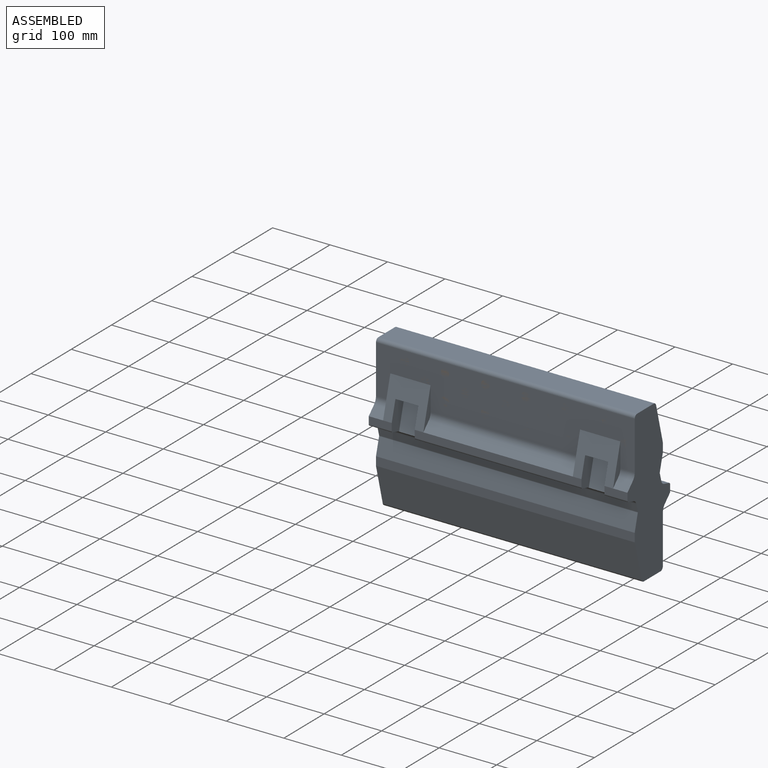
[diagram: assembled view]
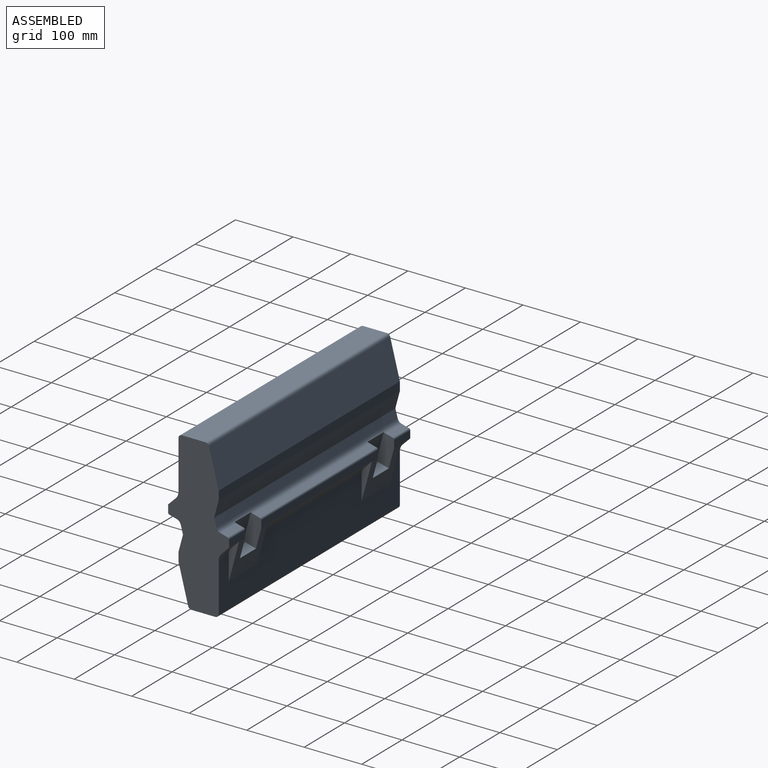
[diagram: assembled view, second angle]
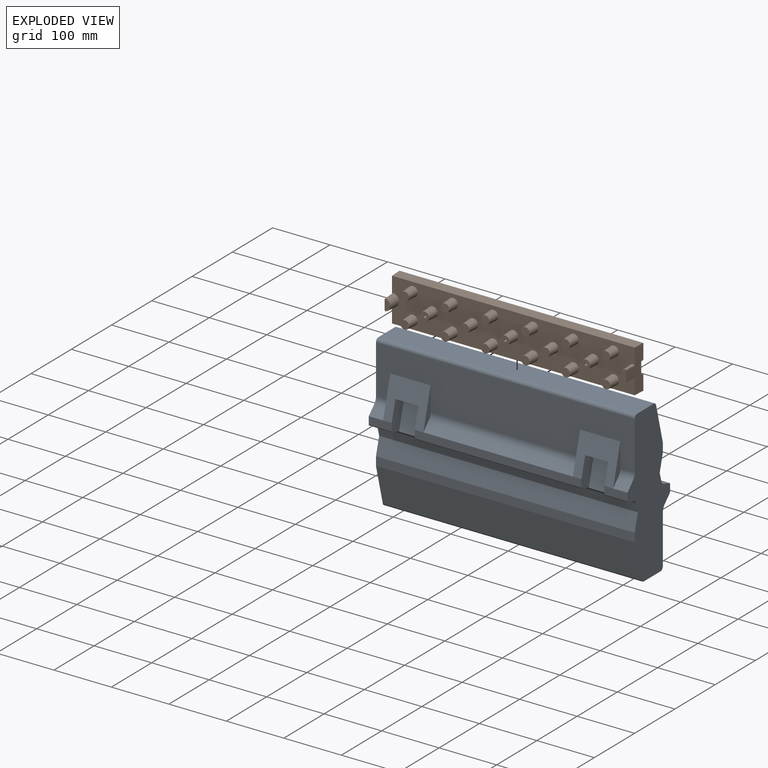
[diagram: exploded view]
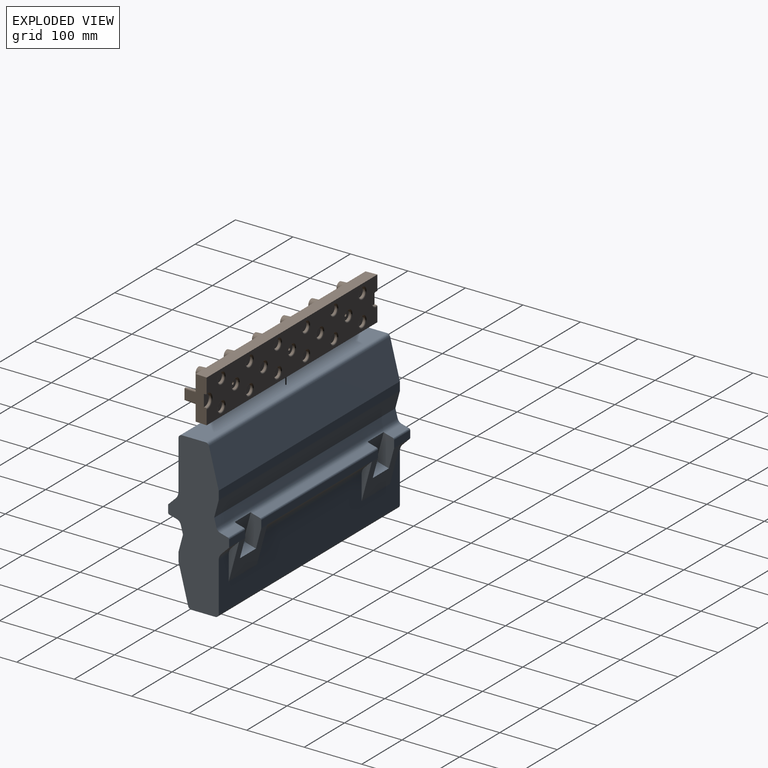
[diagram: exploded view, second angle]
ASSEMBLY  parts=2 mates=2
PART A: 84 faces, bbox 270.1x106.1x450.1 mm
  f0: cylinder r=6mm len=40mm, axis (0,0,1), area 377mm2, adj f3,f6,f7,f8
  f1: cylinder r=6mm len=40mm, axis (0,0,-1), area 377mm2, adj f5,f9,f10,f12
  f2: cylinder r=3mm len=290mm, axis (0,0,1), area 1138.8mm2, adj f4,f6,f10,f11
  f3: plane 43.1x40mm, normal (0.26,-0.97,0), area 1784.8mm2, adj f0,f6,f8,f40
  f4: plane 290x12.66mm, normal (-0.97,-0.26,0), area 3800mm2, adj f2,f6,f10,f40
  f5: plane 43.1x40mm, normal (0.26,-0.97,0), area 1784.8mm2, adj f1,f10,f12,f40
  f6: plane 54.84x29.88mm, normal (0,0,-1), area 1101.4mm2, adj f0,f2,f3,f4,f7,f11,f15,f40
  f7: plane 40x16.18mm, normal (-0.97,-0.26,0), area 670.1mm2, adj f0,f6,f8,f15
  f8: plane 54.84x29.88mm, normal (0,0,1), area 1101.4mm2, adj f0,f3,f7,f15,f23,f24,f25,f40
  f9: plane 40x16.18mm, normal (-0.97,-0.26,0), area 670.1mm2, adj f1,f10,f12,f18
  f10: plane 54.84x29.88mm, normal (0,0,1), area 1101.4mm2, adj f1,f2,f4,f5,f9,f11,f18,f40
  f11: plane 290x12.7mm, normal (0,-1,0), area 3682.4mm2, adj f2,f6,f10,f13,f15,f18
  f12: plane 54.84x29.88mm, normal (0,0,-1), area 1101.4mm2, adj f1,f5,f9,f18,f40,f41,f42,f43
  f13: plane 260x13.31mm, normal (0.71,-0.71,0), area 4895.4mm2, adj f11,f14,f19,f20
  f14: plane 67.23x18.06mm, normal (0,0,1), area 437.1mm2, adj f13,f15,f20,f46
  f15: plane 70x67.18mm, normal (0.26,-0.97,0), area 3447.8mm2, adj f6,f7,f8,f11,f14,f16,f23,f46
  f16: plane 67.23x18.06mm, normal (0,0,-1), area 437mm2, adj f15,f21,f22,f46
  f17: plane 67.23x18.06mm, normal (0,0,1), area 437mm2, adj f18,f44,f45,f46
  f18: plane 70x67.18mm, normal (0.26,-0.97,0), area 3447.8mm2, adj f9,f10,f11,f12,f17,f19,f43,f46
  f19: plane 67.23x18.06mm, normal (0,0,-1), area 437mm2, adj f13,f18,f20,f46
  f20: cylinder r=16mm len=260mm, axis (0,0,1), area 3267.3mm2, adj f13,f14,f19,f46
  f21: cylinder r=16mm len=25mm, axis (0,0,1), area 314.2mm2, adj f16,f22,f46,f64
  f22: plane 25x13.31mm, normal (0.71,-0.71,0), area 470.7mm2, adj f16,f21,f23,f64
  f23: plane 40x12.7mm, normal (0,-1,0), area 507.9mm2, adj f8,f15,f22,f24,f64
  f24: cylinder r=3mm len=40mm, axis (0,0,1), area 157.1mm2, adj f8,f23,f25,f64
  f25: plane 40x12.66mm, normal (-0.97,-0.26,0), area 524.1mm2, adj f8,f24,f40,f64
  f26: cylinder r=16mm len=25mm, axis (0,0,1), area 314.2mm2, adj f27,f55,f56,f64
  f27: plane 25x13.31mm, normal (-0.71,0.71,0), area 470.7mm2, adj f26,f54,f55,f64
  f28: cylinder r=3mm len=40mm, axis (0,0,1), area 157.1mm2, adj f54,f60,f61,f64
  f29: cylinder r=3mm len=40mm, axis (0,0,1), area 157.1mm2, adj f58,f62,f63,f65
  f30: plane 25x13.31mm, normal (-0.71,0.71,0), area 470.7mm2, adj f31,f57,f58,f65
  f31: cylinder r=16mm len=25mm, axis (0,0,1), area 314.2mm2, adj f30,f56,f57,f65
  f32: cylinder r=6mm len=450mm, axis (0,0,1), area 4241.2mm2, adj f33,f56,f64,f65
  f33: plane 450x41.35mm, normal (-1,0,0), area 18606.4mm2, adj f32,f34,f64,f65
  f34: cylinder r=6mm len=450mm, axis (0,0,1), area 3561.6mm2, adj f33,f35,f64,f65
  f35: plane 450x65.49mm, normal (-0.25,-0.97,0), area 30431.2mm2, adj f34,f36,f64,f65
  f36: plane 450x15mm, normal (0,-1,0), area 6750mm2, adj f35,f37,f64,f65
  f37: plane 450x28.77mm, normal (0.26,-0.97,0), area 13402.8mm2, adj f36,f38,f64,f65
  f38: cylinder r=2mm len=450mm, axis (0,0,1), area 471.2mm2, adj f37,f39,f64,f65
  f39: plane 450x14.02mm, normal (-0.26,-0.97,0), area 6532.1mm2, adj f38,f40,f64,f65
  f40: cylinder r=10mm len=450mm, axis (0,0,1), area 4429.4mm2, adj f3,f4,f5,f6,f8,f10,f12,f25
  f41: plane 40x12.66mm, normal (-0.97,-0.26,0), area 524.1mm2, adj f12,f40,f42,f65
  f42: cylinder r=3mm len=40mm, axis (0,0,1), area 157.1mm2, adj f12,f41,f43,f65
  f43: plane 40x12.7mm, normal (0,-1,0), area 507.9mm2, adj f12,f18,f42,f44,f65
  f44: plane 25x13.31mm, normal (0.71,-0.71,0), area 470.7mm2, adj f17,f43,f45,f65
  f45: cylinder r=16mm len=25mm, axis (0,0,1), area 314.2mm2, adj f17,f44,f46,f65
  f46: plane 450x84.49mm, normal (0,-1,0), area 32063mm2, adj f14,f15,f16,f17,f18,f19,f20,f21
  f47: cylinder r=6mm len=450mm, axis (0,0,1), area 4241.2mm2, adj f46,f48,f64,f65
  f48: plane 450x41.35mm, normal (1,0,0), area 18606.4mm2, adj f47,f49,f64,f65
  f49: cylinder r=6mm len=450mm, axis (0,0,1), area 3561.6mm2, adj f48,f50,f64,f65
  f50: plane 450x65.49mm, normal (0.25,0.97,0), area 30431.2mm2, adj f49,f51,f64,f65
  f51: plane 450x15mm, normal (0,1,0), area 6750mm2, adj f50,f52,f64,f65
  f52: plane 450x28.77mm, normal (-0.26,0.97,0), area 13402.8mm2, adj f51,f64,f65,f66
  f53: cylinder r=6mm len=40mm, axis (0,0,1), area 377mm2, adj f61,f67,f68,f77
  f54: plane 40x12.7mm, normal (0,1,0), area 507.9mm2, adj f27,f28,f61,f64,f69
  f55: plane 67.18x18mm, normal (0,0,-1), area 437.1mm2, adj f26,f27,f56,f69
  f56: plane 450x84.49mm, normal (0,1,0), area 32063mm2, adj f26,f31,f32,f55,f57,f64,f65,f69
  f57: plane 67.18x18mm, normal (0,0,1), area 437.1mm2, adj f30,f31,f56,f73
  f58: plane 40x12.7mm, normal (0,1,0), area 507.9mm2, adj f29,f30,f62,f65,f73
  f59: cylinder r=6mm len=40mm, axis (0,0,-1), area 377mm2, adj f62,f74,f75,f79
  f60: plane 40x12.66mm, normal (0.97,0.26,0), area 524.1mm2, adj f28,f61,f64,f80
  f61: plane 54.84x29.88mm, normal (0,0,1), area 1101.4mm2, adj f28,f53,f54,f60,f67,f68,f69,f80
  f62: plane 54.84x29.88mm, normal (0,0,-1), area 1101.4mm2, adj f29,f58,f59,f63,f73,f74,f75,f80
  f63: plane 40x12.66mm, normal (0.97,0.26,0), area 524.1mm2, adj f29,f62,f65,f80
  f64: plane 270.08x106.08mm, normal (0,0,-1), area 18147.7mm2, adj f21,f22,f23,f24,f25,f26,f27,f28
  f65: plane 270.08x106.08mm, normal (0,0,1), area 18147.3mm2, adj f29,f30,f31,f32,f33,f34,f35,f36
  f66: cylinder r=2mm len=450mm, axis (0,0,1), area 471.2mm2, adj f52,f64,f65,f76
  f67: plane 40x16.18mm, normal (0.97,0.26,0), area 670.1mm2, adj f53,f61,f69,f77
  f68: plane 43.1x40mm, normal (-0.26,0.97,0), area 1784.8mm2, adj f53,f61,f77,f80
  f69: plane 70x67.18mm, normal (-0.26,0.97,0), area 3447.8mm2, adj f54,f55,f56,f61,f67,f70,f77,f81
  f70: plane 67.23x18.06mm, normal (0,0,1), area 437.1mm2, adj f56,f69,f71,f78
  f71: cylinder r=16mm len=260mm, axis (0,0,1), area 3267.3mm2, adj f56,f70,f72,f78
  f72: plane 67.18x18mm, normal (0,0,-1), area 437.1mm2, adj f56,f71,f73,f78
  f73: plane 70x67.18mm, normal (-0.26,0.97,0), area 3447.8mm2, adj f56,f57,f58,f62,f72,f75,f79,f81
  f74: plane 43.1x40mm, normal (-0.26,0.97,0), area 1784.8mm2, adj f59,f62,f79,f80
  f75: plane 40x16.18mm, normal (0.97,0.26,0), area 670.1mm2, adj f59,f62,f73,f79
  f76: plane 450x14.02mm, normal (0.26,0.97,0), area 6532.1mm2, adj f64,f65,f66,f80
  f77: plane 54.84x29.88mm, normal (0,0,-1), area 1101.4mm2, adj f53,f67,f68,f69,f80,f81,f82,f83
  f78: plane 260x13.31mm, normal (-0.71,0.71,0), area 4895.4mm2, adj f70,f71,f72,f81
  f79: plane 54.84x29.88mm, normal (0,0,1), area 1101.4mm2, adj f59,f73,f74,f75,f80,f81,f82,f83
  f80: cylinder r=10mm len=450mm, axis (0,0,1), area 4429.4mm2, adj f60,f61,f62,f63,f64,f65,f68,f74
  f81: plane 290x12.7mm, normal (0,1,0), area 3682.4mm2, adj f69,f73,f77,f78,f79,f83
  f82: plane 290x12.66mm, normal (0.97,0.26,0), area 3800mm2, adj f77,f79,f80,f83
  f83: cylinder r=3mm len=290mm, axis (0,0,1), area 1138.8mm2, adj f77,f79,f81,f82
PART B: 108 faces, bbox 425.7x40x75 mm
  f0: plane 75x40mm, normal (-1,-0.05,0), area 1729.6mm2, adj f2,f3,f4,f5,f75,f80,f81,f84
  f1: plane 75x40mm, normal (1,-0.05,0), area 1729.6mm2, adj f2,f3,f4,f5,f77,f78,f79,f82
  f2: plane 424.19x75mm, normal (0,1,0), area 25488mm2, adj f0,f1,f4,f5,f86,f87,f88,f89
  f3: plane 422.1x75mm, normal (0,-1,0), area 27331.7mm2, adj f0,f1,f4,f5,f6,f10,f14,f18
  f4: plane 424.19x20mm, normal (0,0,-1), area 8462.9mm2, adj f0,f1,f2,f3
  f5: plane 424.19x20mm, normal (0,0,1), area 8462.9mm2, adj f0,f1,f2,f3
  f6: cone r=7.5mm half-angle=3deg, axis (0,1,0), area 1009.7mm2, adj f3,f7
  f7: plane 15x15mm, normal (0,-1,0), area 176.7mm2, adj f6
  f8: cone r=8.5mm half-angle=5deg, axis (0,1,0), area 164.2mm2, adj f9,f104
  f9: plane 16.13x16.13mm, normal (0,1,0), area 204.2mm2, adj f8
  f10: cone r=7.5mm half-angle=3deg, axis (0,1,0), area 1009.7mm2, adj f3,f11
  f11: plane 15x15mm, normal (0,-1,0), area 176.7mm2, adj f10
  f12: cone r=8.5mm half-angle=5deg, axis (0,1,0), area 164.2mm2, adj f13,f103
  f13: plane 16.13x16.13mm, normal (0,1,0), area 204.2mm2, adj f12
  f14: cone r=7.5mm half-angle=3deg, axis (0,1,0), area 1009.7mm2, adj f3,f15
  f15: plane 15x15mm, normal (0,-1,0), area 176.7mm2, adj f14
  f16: cone r=8.5mm half-angle=5deg, axis (0,1,0), area 164.2mm2, adj f17,f102
  f17: plane 16.13x16.13mm, normal (0,1,0), area 204.2mm2, adj f16
  f18: cone r=7.5mm half-angle=3deg, axis (0,1,0), area 1009.7mm2, adj f3,f19
  f19: plane 15x15mm, normal (0,-1,0), area 176.7mm2, adj f18
  f20: cone r=8.5mm half-angle=5deg, axis (0,1,0), area 164.2mm2, adj f21,f101
  f21: plane 16.13x16.13mm, normal (0,1,0), area 204.2mm2, adj f20
  f22: cone r=7.5mm half-angle=3deg, axis (0,1,0), area 1009.7mm2, adj f3,f23
  f23: plane 15x15mm, normal (0,-1,0), area 176.7mm2, adj f22
  f24: cone r=8.5mm half-angle=5deg, axis (0,1,0), area 164.2mm2, adj f25,f100
  f25: plane 16.13x16.13mm, normal (0,1,0), area 204.2mm2, adj f24
  f26: cone r=7.5mm half-angle=3deg, axis (0,1,0), area 1009.7mm2, adj f3,f27
  f27: plane 15x15mm, normal (0,-1,0), area 176.7mm2, adj f26
  f28: cone r=8.5mm half-angle=5deg, axis (0,1,0), area 164.2mm2, adj f29,f99
  f29: plane 16.13x16.13mm, normal (0,1,0), area 204.2mm2, adj f28
  f30: cone r=7.5mm half-angle=3deg, axis (0,1,0), area 1009.7mm2, adj f3,f31
  f31: plane 15x15mm, normal (0,-1,0), area 176.7mm2, adj f30
  f32: cone r=8.5mm half-angle=5deg, axis (0,1,0), area 164.2mm2, adj f33,f98
  f33: plane 16.13x16.13mm, normal (0,1,0), area 204.2mm2, adj f32
  f34: cone r=7.5mm half-angle=3deg, axis (0,1,0), area 1009.7mm2, adj f3,f35
  f35: plane 15x15mm, normal (0,-1,0), area 176.7mm2, adj f34
  f36: cone r=8.5mm half-angle=5deg, axis (0,1,0), area 164.2mm2, adj f37,f97
  f37: plane 16.13x16.13mm, normal (0,1,0), area 204.2mm2, adj f36
  f38: cone r=7.5mm half-angle=3deg, axis (0,1,0), area 1009.7mm2, adj f3,f39
  f39: plane 15x15mm, normal (0,-1,0), area 176.7mm2, adj f38
  f40: cone r=8.5mm half-angle=5deg, axis (0,1,0), area 164.2mm2, adj f41,f96
  f41: plane 16.13x16.13mm, normal (0,1,0), area 204.2mm2, adj f40
  f42: cone r=7.5mm half-angle=3deg, axis (0,1,0), area 1009.7mm2, adj f3,f43
  f43: plane 15x15mm, normal (0,-1,0), area 176.7mm2, adj f42
  f44: cone r=8.5mm half-angle=5deg, axis (0,1,0), area 164.2mm2, adj f45,f95
  f45: plane 16.13x16.13mm, normal (0,1,0), area 204.2mm2, adj f44
  f46: cone r=7.5mm half-angle=3deg, axis (0,1,0), area 1009.7mm2, adj f3,f47
  f47: plane 15x15mm, normal (0,-1,0), area 176.7mm2, adj f46
  f48: cone r=8.5mm half-angle=5deg, axis (0,1,0), area 164.2mm2, adj f49,f94
  f49: plane 16.13x16.13mm, normal (0,1,0), area 204.2mm2, adj f48
  f50: cone r=7.5mm half-angle=3deg, axis (0,1,0), area 1009.7mm2, adj f3,f51
  f51: plane 15x15mm, normal (0,-1,0), area 176.7mm2, adj f50
  f52: cone r=8.5mm half-angle=5deg, axis (0,1,0), area 164.2mm2, adj f53,f93
  f53: plane 16.13x16.13mm, normal (0,1,0), area 204.2mm2, adj f52
  f54: cone r=7.5mm half-angle=3deg, axis (0,1,0), area 1009.7mm2, adj f3,f55
  f55: plane 15x15mm, normal (0,-1,0), area 157.1mm2, adj f54,f107
  f56: cone r=8.5mm half-angle=5deg, axis (0,1,0), area 164.2mm2, adj f57,f92
  f57: plane 16.13x16.13mm, normal (0,1,0), area 184.6mm2, adj f56,f107
  f58: cone r=7.5mm half-angle=3deg, axis (0,1,0), area 1009.7mm2, adj f3,f59
  f59: plane 15x15mm, normal (0,-1,0), area 176.7mm2, adj f58
  f60: cone r=8.5mm half-angle=5deg, axis (0,1,0), area 164.2mm2, adj f61,f91
  f61: plane 16.13x16.13mm, normal (0,1,0), area 204.2mm2, adj f60
  f62: cone r=7.5mm half-angle=3deg, axis (0,1,0), area 1009.7mm2, adj f3,f63
  f63: plane 15x15mm, normal (0,-1,0), area 157.1mm2, adj f62,f106
  f64: cone r=8.5mm half-angle=5deg, axis (0,1,0), area 164.2mm2, adj f65,f90
  f65: plane 16.13x16.13mm, normal (0,1,0), area 184.6mm2, adj f64,f106
  f66: cone r=7.5mm half-angle=3deg, axis (0,1,0), area 1009.7mm2, adj f3,f67
  f67: plane 15x15mm, normal (0,-1,0), area 176.7mm2, adj f66
  f68: cone r=8.5mm half-angle=5deg, axis (0,1,0), area 164.2mm2, adj f69,f89
  f69: plane 16.13x16.13mm, normal (0,1,0), area 204.2mm2, adj f68
  f70: cone r=7.5mm half-angle=3deg, axis (0,1,0), area 1009.7mm2, adj f3,f71
  f71: plane 15x15mm, normal (0,-1,0), area 157.1mm2, adj f70,f105
  f72: cone r=8.5mm half-angle=5deg, axis (0,1,0), area 164.2mm2, adj f73,f88
  f73: plane 16.13x16.13mm, normal (0,1,0), area 184.6mm2, adj f72,f105
  f74: cone r=10mm half-angle=3deg, axis (0,1,0), area 587.4mm2, adj f3,f75,f84,f85
  f75: plane 19.73x10mm, normal (0,-1,0), area 155.8mm2, adj f0,f74,f84,f85
  f76: cone r=10mm half-angle=3deg, axis (0,1,0), area 587.4mm2, adj f3,f77,f82,f83
  f77: plane 19.73x10mm, normal (0,-1,0), area 155.8mm2, adj f1,f76,f82,f83
  f78: plane 21.13x12.4mm, normal (0,1,0), area 213.8mm2, adj f1,f79
  f79: cone r=11mm half-angle=5deg, axis (0,1,0), area 119.4mm2, adj f1,f78,f86
  f80: cone r=11mm half-angle=5deg, axis (0,1,0), area 119.4mm2, adj f0,f81,f87
  f81: plane 21.13x12.4mm, normal (0,1,0), area 213.8mm2, adj f0,f80
  f82: cone r=1.5mm half-angle=3deg, axis (0,1,0), area 70.9mm2, adj f1,f3,f76,f77
  f83: cone r=1.5mm half-angle=3deg, axis (0,1,0), area 70.9mm2, adj f1,f3,f76,f77
  f84: cone r=1.5mm half-angle=3deg, axis (0,1,0), area 70.9mm2, adj f0,f3,f74,f75
  f85: cone r=1.5mm half-angle=3deg, axis (0,1,0), area 70.9mm2, adj f0,f3,f74,f75
  f86: torus R=12.83mm, axis (0,-1,0), area 120.4mm2, adj f1,f2,f79
  f87: torus R=12.83mm, axis (0,-1,0), area 120.4mm2, adj f0,f2,f80
  f88: torus R=10.33mm, axis (0,-1,0), area 169.7mm2, adj f2,f72
  f89: torus R=10.33mm, axis (0,-1,0), area 169.7mm2, adj f2,f68
  f90: torus R=10.33mm, axis (0,-1,0), area 169.7mm2, adj f2,f64
  f91: torus R=10.33mm, axis (0,-1,0), area 169.7mm2, adj f2,f60
  f92: torus R=10.33mm, axis (0,-1,0), area 169.7mm2, adj f2,f56
  f93: torus R=10.33mm, axis (0,-1,0), area 169.7mm2, adj f2,f52
  f94: torus R=10.33mm, axis (0,-1,0), area 169.7mm2, adj f2,f48
  f95: torus R=10.33mm, axis (0,-1,0), area 169.7mm2, adj f2,f44
  f96: torus R=10.33mm, axis (0,-1,0), area 169.7mm2, adj f2,f40
  f97: torus R=10.33mm, axis (0,-1,0), area 169.7mm2, adj f2,f36
  f98: torus R=10.33mm, axis (0,-1,0), area 169.7mm2, adj f2,f32
  f99: torus R=10.33mm, axis (0,-1,0), area 169.7mm2, adj f2,f28
  f100: torus R=10.33mm, axis (0,-1,0), area 169.7mm2, adj f2,f24
  f101: torus R=10.33mm, axis (0,-1,0), area 169.7mm2, adj f2,f20
  f102: torus R=10.33mm, axis (0,-1,0), area 169.7mm2, adj f2,f16
  f103: torus R=10.33mm, axis (0,-1,0), area 169.7mm2, adj f2,f12
  f104: torus R=10.33mm, axis (0,-1,0), area 169.7mm2, adj f2,f8
  f105: cylinder r=2.5mm len=35mm, axis (0,-1,0), area 549.8mm2, adj f71,f73
  f106: cylinder r=2.5mm len=35mm, axis (0,-1,0), area 549.8mm2, adj f63,f65
  f107: cylinder r=2.5mm len=35mm, axis (0,-1,0), area 549.8mm2, adj f55,f57
PLACE A rot(axis=(0,-1,0),90deg) t=(337.74,96.57,-1611.82)mm
PLACE B t=(2.01,30.14,-35.79)mm
MATE parallel A.f48 <-> B.f5  axis (0,0,1) through (2.01,16.81,46.06)mm
MATE parallel B.f62 <-> A.f46  axis (0,-1,0) through (2.01,-9.86,1.71)mm
